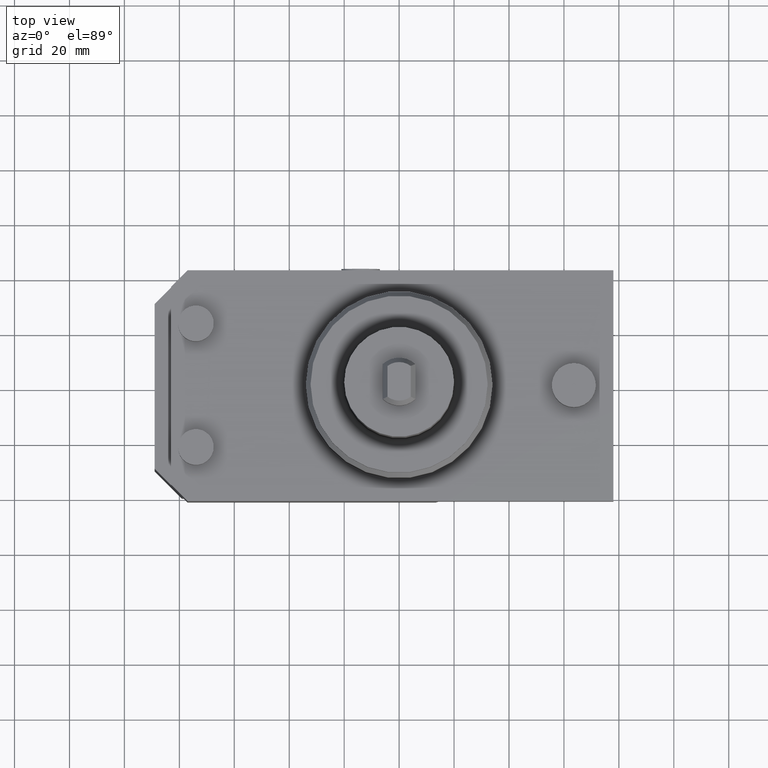
[diagram: clean part render]
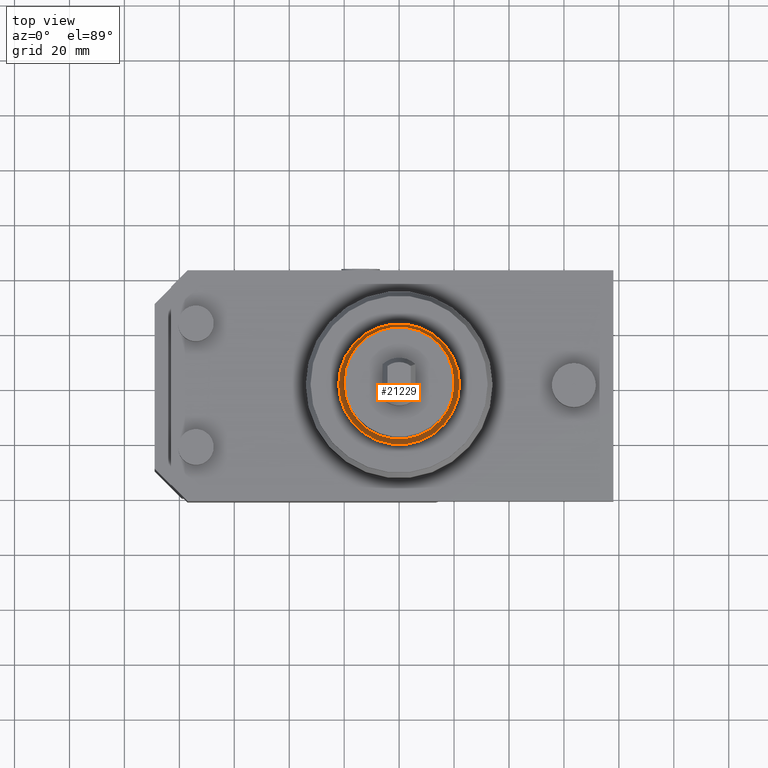
[diagram: same view with one face highlighted and labeled with its STEP entity id]
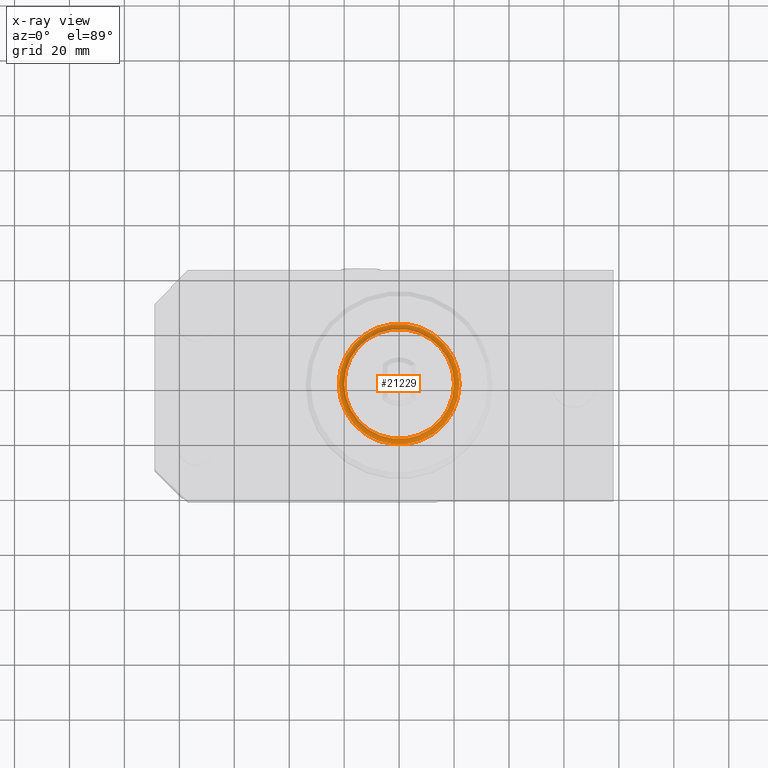
[diagram: x-ray of the same camera — body ghosted, the highlighted face saturated]
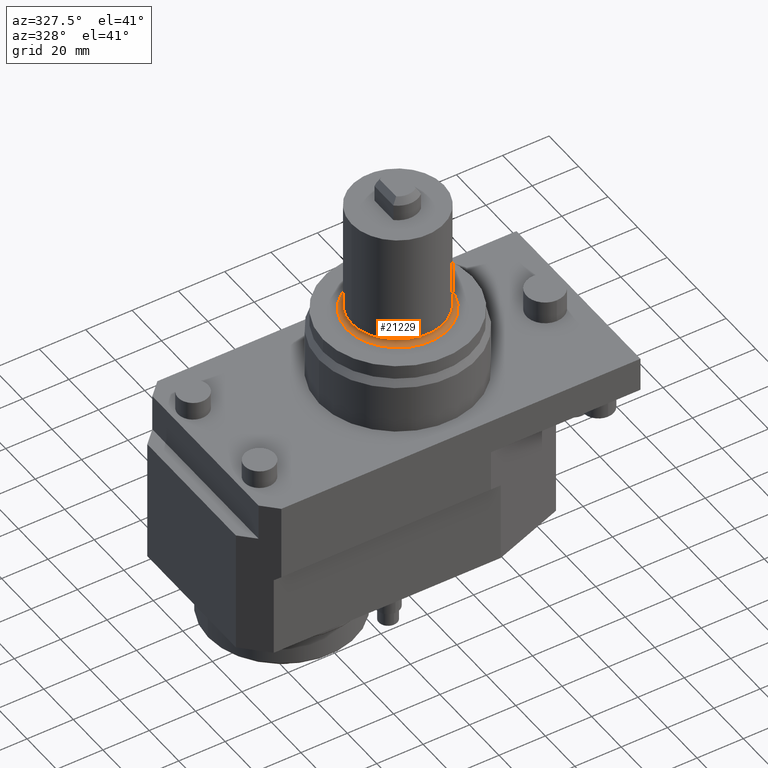
[diagram: same view with one face highlighted and labeled with its STEP entity id]
A machine part, top view. The second image highlights one B-rep face of the part: STEP entity #21229.
The next image is the same camera in x-ray: the body ghosted, the highlighted face saturated — about 13% of this face is hidden behind the body in this view.
A second angle (auxiliary view) of the same face is appended — the face is thin or edge-on in the first view.
In plain terms, the highlighted toroidal blend (fillet) surface has major radius 22 mm and minor (blend) radius 2 mm.
Its self-contained STEP definition (entity closure, byte-faithful):
#21098 = CYLINDRICAL_SURFACE('',#21099,20.);
#21099 = AXIS2_PLACEMENT_3D('',#21100,#21101,#21102);
#21100 = CARTESIAN_POINT('',(0.E+000,0.E+000,-57.));
#21101 = DIRECTION('',(0.E+000,0.E+000,-1.));
#21102 = DIRECTION('',(-1.,0.E+000,0.E+000));
#21158 = EDGE_CURVE('',#21159,#21159,#21161,.T.);
#21159 = VERTEX_POINT('',#21160);
#21160 = CARTESIAN_POINT('',(-20.,0.E+000,32.));
#21161 = SURFACE_CURVE('',#21162,(#21167,#21173),.PCURVE_S1.);
#21162 = CIRCLE('',#21163,20.);
#21163 = AXIS2_PLACEMENT_3D('',#21164,#21165,#21166);
#21164 = CARTESIAN_POINT('',(0.E+000,0.E+000,32.));
#21165 = DIRECTION('',(0.E+000,0.E+000,-1.));
#21166 = DIRECTION('',(-1.,0.E+000,0.E+000));
#21167 = PCURVE('',#21098,#21168);
#21168 = DEFINITIONAL_REPRESENTATION('',(#21169),#21172);
#21169 = B_SPLINE_CURVE_WITH_KNOTS('',1,(#21170,#21171),.UNSPECIFIED.,
  .F.,.F.,(2,2),(0.E+000,6.28318530718),.PIECEWISE_BEZIER_KNOTS.);
#21170 = CARTESIAN_POINT('',(0.E+000,-89.));
#21171 = CARTESIAN_POINT('',(6.28318530718,-89.));
#21172 = ( GEOMETRIC_REPRESENTATION_CONTEXT(2) 
PARAMETRIC_REPRESENTATION_CONTEXT() REPRESENTATION_CONTEXT('2D SPACE',''
  ) );
#21173 = PCURVE('',#21174,#21179);
#21174 = TOROIDAL_SURFACE('',#21175,22.,2.);
#21175 = AXIS2_PLACEMENT_3D('',#21176,#21177,#21178);
#21176 = CARTESIAN_POINT('',(0.E+000,0.E+000,32.));
#21177 = DIRECTION('',(0.E+000,0.E+000,-1.));
#21178 = DIRECTION('',(-1.,0.E+000,0.E+000));
#21179 = DEFINITIONAL_REPRESENTATION('',(#21180),#21206);
#21180 = B_SPLINE_CURVE_WITH_KNOTS('',3,(#21181,#21182,#21183,#21184,
    #21185,#21186,#21187,#21188,#21189,#21190,#21191,#21192,#21193,
    #21194,#21195,#21196,#21197,#21198,#21199,#21200,#21201,#21202,
    #21203,#21204,#21205),.UNSPECIFIED.,.F.,.F.,(4,1,1,1,1,1,1,1,1,1,1,1
    ,1,1,1,1,1,1,1,1,1,1,4),(0.E+000,0.285599332145,0.571198664289,
    0.856797996434,1.142397328578,1.427996660723,1.713595992867,
    1.999195325012,2.284794657156,2.570393989301,2.855993321445,
    3.14159265359,3.427191985734,3.712791317879,3.998390650023,
    4.283989982168,4.569589314312,4.855188646457,5.140787978601,
    5.426387310746,5.711986642891,5.997585975035,6.28318530718),
  .QUASI_UNIFORM_KNOTS.);
#21181 = CARTESIAN_POINT('',(0.E+000,9.424777960769));
#21182 = CARTESIAN_POINT('',(9.519977738151E-002,9.424777960769));
#21183 = CARTESIAN_POINT('',(0.285599332145,9.424777960769));
#21184 = CARTESIAN_POINT('',(0.571198664289,9.424777960769));
#21185 = CARTESIAN_POINT('',(0.856797996434,9.424777960769));
#21186 = CARTESIAN_POINT('',(1.142397328578,9.424777960769));
#21187 = CARTESIAN_POINT('',(1.427996660723,9.424777960769));
#21188 = CARTESIAN_POINT('',(1.713595992867,9.424777960769));
#21189 = CARTESIAN_POINT('',(1.999195325012,9.424777960769));
#21190 = CARTESIAN_POINT('',(2.284794657156,9.424777960769));
#21191 = CARTESIAN_POINT('',(2.570393989301,9.424777960769));
#21192 = CARTESIAN_POINT('',(2.855993321445,9.424777960769));
#21193 = CARTESIAN_POINT('',(3.14159265359,9.424777960769));
#21194 = CARTESIAN_POINT('',(3.427191985734,9.424777960769));
#21195 = CARTESIAN_POINT('',(3.712791317879,9.424777960769));
#21196 = CARTESIAN_POINT('',(3.998390650023,9.424777960769));
#21197 = CARTESIAN_POINT('',(4.283989982168,9.424777960769));
#21198 = CARTESIAN_POINT('',(4.569589314312,9.424777960769));
#21199 = CARTESIAN_POINT('',(4.855188646457,9.424777960769));
#21200 = CARTESIAN_POINT('',(5.140787978601,9.424777960769));
#21201 = CARTESIAN_POINT('',(5.426387310746,9.424777960769));
#21202 = CARTESIAN_POINT('',(5.711986642891,9.424777960769));
#21203 = CARTESIAN_POINT('',(5.997585975035,9.424777960769));
#21204 = CARTESIAN_POINT('',(6.187985529798,9.424777960769));
#21205 = CARTESIAN_POINT('',(6.28318530718,9.424777960769));
#21206 = ( GEOMETRIC_REPRESENTATION_CONTEXT(2) 
PARAMETRIC_REPRESENTATION_CONTEXT() REPRESENTATION_CONTEXT('2D SPACE',''
  ) );
#21229 = ADVANCED_FACE('',(#21230),#21174,.F.);
#21230 = FACE_BOUND('',#21231,.F.);
#21231 = EDGE_LOOP('',(#21232,#21283,#21308,#21309));
#21232 = ORIENTED_EDGE('',*,*,#21233,.T.);
#21233 = EDGE_CURVE('',#21234,#21234,#21236,.T.);
#21234 = VERTEX_POINT('',#21235);
#21235 = CARTESIAN_POINT('',(-22.,0.E+000,30.));
#21236 = SURFACE_CURVE('',#21237,(#21242,#21271),.PCURVE_S1.);
#21237 = CIRCLE('',#21238,22.);
#21238 = AXIS2_PLACEMENT_3D('',#21239,#21240,#21241);
#21239 = CARTESIAN_POINT('',(0.E+000,0.E+000,30.));
#21240 = DIRECTION('',(0.E+000,0.E+000,-1.));
#21241 = DIRECTION('',(-1.,0.E+000,0.E+000));
#21242 = PCURVE('',#21174,#21243);
#21243 = DEFINITIONAL_REPRESENTATION('',(#21244),#21270);
#21244 = B_SPLINE_CURVE_WITH_KNOTS('',3,(#21245,#21246,#21247,#21248,
    #21249,#21250,#21251,#21252,#21253,#21254,#21255,#21256,#21257,
    #21258,#21259,#21260,#21261,#21262,#21263,#21264,#21265,#21266,
    #21267,#21268,#21269),.UNSPECIFIED.,.F.,.F.,(4,1,1,1,1,1,1,1,1,1,1,1
    ,1,1,1,1,1,1,1,1,1,1,4),(0.E+000,0.285599332145,0.571198664289,
    0.856797996434,1.142397328578,1.427996660723,1.713595992867,
    1.999195325012,2.284794657156,2.570393989301,2.855993321445,
    3.14159265359,3.427191985734,3.712791317879,3.998390650023,
    4.283989982168,4.569589314312,4.855188646457,5.140787978601,
    5.426387310746,5.711986642891,5.997585975035,6.28318530718),
  .QUASI_UNIFORM_KNOTS.);
#21245 = CARTESIAN_POINT('',(0.E+000,7.853981633974));
#21246 = CARTESIAN_POINT('',(9.519977738151E-002,7.853981633974));
#21247 = CARTESIAN_POINT('',(0.285599332145,7.853981633974));
#21248 = CARTESIAN_POINT('',(0.571198664289,7.853981633974));
#21249 = CARTESIAN_POINT('',(0.856797996434,7.853981633974));
#21250 = CARTESIAN_POINT('',(1.142397328578,7.853981633974));
#21251 = CARTESIAN_POINT('',(1.427996660723,7.853981633974));
#21252 = CARTESIAN_POINT('',(1.713595992867,7.853981633974));
#21253 = CARTESIAN_POINT('',(1.999195325012,7.853981633974));
#21254 = CARTESIAN_POINT('',(2.284794657156,7.853981633974));
#21255 = CARTESIAN_POINT('',(2.570393989301,7.853981633974));
#21256 = CARTESIAN_POINT('',(2.855993321445,7.853981633974));
#21257 = CARTESIAN_POINT('',(3.14159265359,7.853981633974));
#21258 = CARTESIAN_POINT('',(3.427191985734,7.853981633974));
#21259 = CARTESIAN_POINT('',(3.712791317879,7.853981633974));
#21260 = CARTESIAN_POINT('',(3.998390650023,7.853981633974));
#21261 = CARTESIAN_POINT('',(4.283989982168,7.853981633974));
#21262 = CARTESIAN_POINT('',(4.569589314312,7.853981633974));
#21263 = CARTESIAN_POINT('',(4.855188646457,7.853981633974));
#21264 = CARTESIAN_POINT('',(5.140787978601,7.853981633974));
#21265 = CARTESIAN_POINT('',(5.426387310746,7.853981633974));
#21266 = CARTESIAN_POINT('',(5.711986642891,7.853981633974));
#21267 = CARTESIAN_POINT('',(5.997585975035,7.853981633974));
#21268 = CARTESIAN_POINT('',(6.187985529798,7.853981633974));
#21269 = CARTESIAN_POINT('',(6.28318530718,7.853981633974));
#21270 = ( GEOMETRIC_REPRESENTATION_CONTEXT(2) 
PARAMETRIC_REPRESENTATION_CONTEXT() REPRESENTATION_CONTEXT('2D SPACE',''
  ) );
#21271 = PCURVE('',#21272,#21277);
#21272 = PLANE('',#21273);
#21273 = AXIS2_PLACEMENT_3D('',#21274,#21275,#21276);
#21274 = CARTESIAN_POINT('',(-1.347066989205E-015,-22.,30.));
#21275 = DIRECTION('',(0.E+000,0.E+000,-1.));
#21276 = DIRECTION('',(-1.,0.E+000,0.E+000));
#21277 = DEFINITIONAL_REPRESENTATION('',(#21278),#21282);
#21278 = CIRCLE('',#21279,22.);
#21279 = AXIS2_PLACEMENT_2D('',#21280,#21281);
#21280 = CARTESIAN_POINT('',(-1.347066989205E-015,22.));
#21281 = DIRECTION('',(1.,0.E+000));
#21282 = ( GEOMETRIC_REPRESENTATION_CONTEXT(2) 
PARAMETRIC_REPRESENTATION_CONTEXT() REPRESENTATION_CONTEXT('2D SPACE',''
  ) );
#21283 = ORIENTED_EDGE('',*,*,#21284,.T.);
#21284 = EDGE_CURVE('',#21234,#21159,#21285,.T.);
#21285 = SEAM_CURVE('',#21286,(#21294,#21301),.PCURVE_S1.);
#21286 = B_SPLINE_CURVE_WITH_KNOTS('',6,(#21287,#21288,#21289,#21290,
    #21291,#21292,#21293),.UNSPECIFIED.,.F.,.F.,(7,7),(1.570796326795,
    3.14159265359),.PIECEWISE_BEZIER_KNOTS.);
#21287 = CARTESIAN_POINT('',(-22.,0.E+000,30.));
#21288 = CARTESIAN_POINT('',(-21.4764012244,0.E+000,30.));
#21289 = CARTESIAN_POINT('',(-20.95284699859,0.E+000,30.164455372041));
#21290 = CARTESIAN_POINT('',(-20.49361970071,0.E+000,30.49361970072));
#21291 = CARTESIAN_POINT('',(-20.16445537204,0.E+000,30.95284699859));
#21292 = CARTESIAN_POINT('',(-20.,0.E+000,31.476401224402));
#21293 = CARTESIAN_POINT('',(-20.,0.E+000,32.));
#21294 = PCURVE('',#21174,#21295);
#21295 = DEFINITIONAL_REPRESENTATION('',(#21296),#21300);
#21296 = LINE('',#21297,#21298);
#21297 = CARTESIAN_POINT('',(6.28318530718,6.28318530718));
#21298 = VECTOR('',#21299,1.);
#21299 = DIRECTION('',(0.E+000,1.));
#21300 = ( GEOMETRIC_REPRESENTATION_CONTEXT(2) 
PARAMETRIC_REPRESENTATION_CONTEXT() REPRESENTATION_CONTEXT('2D SPACE',''
  ) );
#21301 = PCURVE('',#21174,#21302);
#21302 = DEFINITIONAL_REPRESENTATION('',(#21303),#21307);
#21303 = LINE('',#21304,#21305);
#21304 = CARTESIAN_POINT('',(0.E+000,6.28318530718));
#21305 = VECTOR('',#21306,1.);
#21306 = DIRECTION('',(0.E+000,1.));
#21307 = ( GEOMETRIC_REPRESENTATION_CONTEXT(2) 
PARAMETRIC_REPRESENTATION_CONTEXT() REPRESENTATION_CONTEXT('2D SPACE',''
  ) );
#21308 = ORIENTED_EDGE('',*,*,#21158,.F.);
#21309 = ORIENTED_EDGE('',*,*,#21284,.F.);